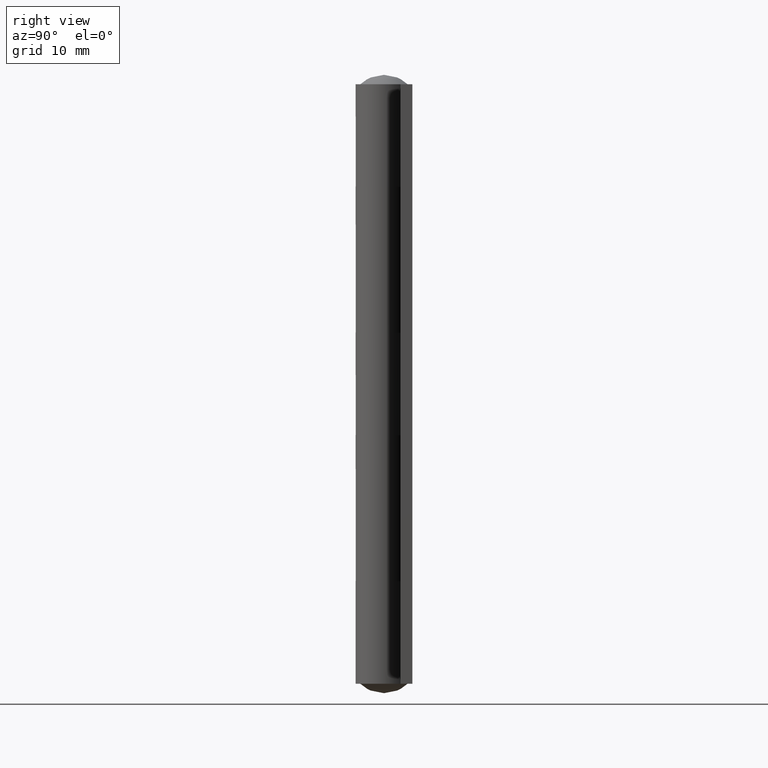
[diagram: clean part render]
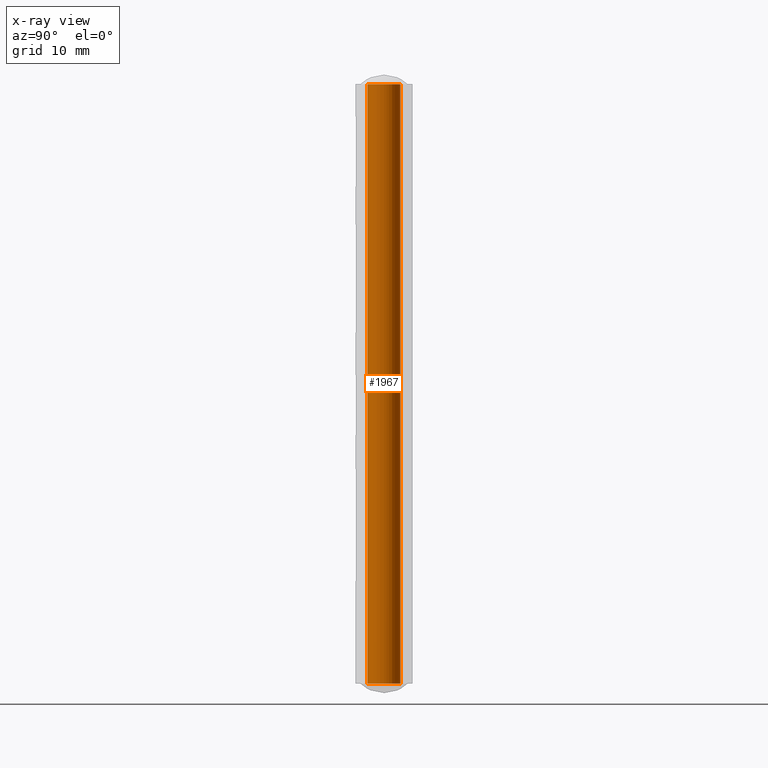
[diagram: x-ray — body ghosted, one internal face saturated and labeled with its STEP entity id]
A machine part, right view, then the same camera in x-ray: the body is ghosted and one INTERNAL B-rep face — a face not visible from any outside direction — is saturated and labeled: STEP entity #1967.
In plain terms, the highlighted face is a freeform B-spline surface patch.
Its self-contained STEP definition (entity closure, byte-faithful):
#1834=CARTESIAN_POINT('',(2.100005999999910,0.0,0.0));
#1835=VERTEX_POINT('',#1834);
#1836=CARTESIAN_POINT('',(0.128202299624910,-2.096089065475634,-3.654414E-015));
#1837=VERTEX_POINT('',#1836);
#1838=CARTESIAN_POINT('',(2.100005999999910,0.0,0.0));
#1839=CARTESIAN_POINT('',(2.100005999999910,-1.975488384445115,-5.423423E-015));
#1840=CARTESIAN_POINT('',(0.128202299624910,-2.096089065475631,-5.754515E-015));
#1848=(BOUNDED_CURVE()B_SPLINE_CURVE(2,(#1838,#1839,#1840),.UNSPECIFIED.,.F.,.U.)B_SPLINE_CURVE_WITH_KNOTS((3,3),(0.500000000000000,0.739332962216410),.UNSPECIFIED.)CURVE()GEOMETRIC_REPRESENTATION_ITEM()RATIONAL_B_SPLINE_CURVE((1.0,0.719603993313109,0.976072041618426))REPRESENTATION_ITEM(''));
#1849=EDGE_CURVE('',#1835,#1837,#1848,.T.);
#1868=CARTESIAN_POINT('',(-0.128202299624910,2.096089065475634,-3.659790E-015));
#1869=VERTEX_POINT('',#1868);
#1883=CARTESIAN_POINT('',(-0.128202299624910,2.096089065475632,-5.765269E-015));
#1884=CARTESIAN_POINT('',(-0.064160986399288,2.100005999999910,-5.765269E-015));
#1885=CARTESIAN_POINT('',(0.0,2.100005999999910,-5.765269E-015));
#1886=CARTESIAN_POINT('',(2.100005999999909,2.100005999999909,-5.765269E-015));
#1887=CARTESIAN_POINT('',(2.100005999999910,0.0,-5.765269E-015));
#1895=(BOUNDED_CURVE()B_SPLINE_CURVE(2,(#1883,#1884,#1885,#1886,#1887),.UNSPECIFIED.,.F.,.U.)B_SPLINE_CURVE_WITH_KNOTS((3,2,3),(0.239332962216410,0.250000000000000,0.500000000000000),.UNSPECIFIED.)CURVE()GEOMETRIC_REPRESENTATION_ITEM()RATIONAL_B_SPLINE_CURVE((0.976072041618426,0.987502787873439,1.0,0.707106781186548,1.0))REPRESENTATION_ITEM(''));
#1896=EDGE_CURVE('',#1869,#1835,#1895,.T.);
#1901=CARTESIAN_POINT('',(-0.128202299314432,2.096089065494626,77.900008200000116));
#1902=CARTESIAN_POINT('',(1.967886766180194,2.224291364809058,77.900008200000116));
#1903=CARTESIAN_POINT('',(2.096089065494626,0.128202299314432,77.900008200000116));
#1904=CARTESIAN_POINT('',(2.224291364809058,-1.967886766180194,77.900008200000116));
#1905=CARTESIAN_POINT('',(0.128202299314432,-2.096089065494626,77.900008200000116));
#1906=CARTESIAN_POINT('',(-0.128202299314432,2.096089065494626,-1.947500204999997));
#1907=CARTESIAN_POINT('',(1.967886766180194,2.224291364809058,-1.947500204999998));
#1908=CARTESIAN_POINT('',(2.096089065494626,0.128202299314432,-1.947500204999997));
#1909=CARTESIAN_POINT('',(2.224291364809058,-1.967886766180194,-1.947500204999998));
#1910=CARTESIAN_POINT('',(0.128202299314432,-2.096089065494626,-1.947500204999997));
#1918=(BOUNDED_SURFACE()B_SPLINE_SURFACE(2,1,((#1901,#1906),(#1902,#1907),(#1903,#1908),(#1904,#1909),(#1905,#1910)),.UNSPECIFIED.,.F.,.F.,.U.)B_SPLINE_SURFACE_WITH_KNOTS((3,2,3),(2,2),(0.0,3.479403865059354,6.958807730118708),(0.0,79.847508405000113),.UNSPECIFIED.)GEOMETRIC_REPRESENTATION_ITEM()RATIONAL_B_SPLINE_SURFACE(((1.0,1.0),(0.707106781186548,0.707106781186548),(1.0,1.0),(0.707106781186548,0.707106781186548),(1.0,1.0)))REPRESENTATION_ITEM('')SURFACE());
#1919=ORIENTED_EDGE('',*,*,#1896,.F.);
#1920=CARTESIAN_POINT('',(-0.128202299624910,2.096089065475639,76.000008000000093));
#1921=VERTEX_POINT('',#1920);
#1922=CARTESIAN_POINT('',(-0.128202299624910,2.096089065475639,76.000008000000093));
#1923=CARTESIAN_POINT('',(-0.128202299624910,2.096089065475634,-3.659790E-015));
#1924=QUASI_UNIFORM_CURVE('',1,(#1922,#1923),.UNSPECIFIED.,.F.,.U.);
#1925=EDGE_CURVE('',#1921,#1869,#1924,.T.);
#1926=ORIENTED_EDGE('',*,*,#1925,.F.);
#1927=CARTESIAN_POINT('',(2.100005999999921,0.0,76.000008000000093));
#1928=VERTEX_POINT('',#1927);
#1929=CARTESIAN_POINT('',(-0.128202299624910,2.096089065475643,76.000008000000108));
#1930=CARTESIAN_POINT('',(-0.064160986399288,2.100005999999920,76.000008000000093));
#1931=CARTESIAN_POINT('',(0.0,2.100005999999921,76.000008000000093));
#1932=CARTESIAN_POINT('',(2.100005999999921,2.100005999999921,76.000008000000093));
#1933=CARTESIAN_POINT('',(2.100005999999921,0.0,76.000008000000093));
#1941=(BOUNDED_CURVE()B_SPLINE_CURVE(2,(#1929,#1930,#1931,#1932,#1933),.UNSPECIFIED.,.F.,.U.)B_SPLINE_CURVE_WITH_KNOTS((3,2,3),(0.239332962216410,0.250000000000000,0.500000000000000),.UNSPECIFIED.)CURVE()GEOMETRIC_REPRESENTATION_ITEM()RATIONAL_B_SPLINE_CURVE((0.976072041618426,0.987502787873439,1.0,0.707106781186548,1.0))REPRESENTATION_ITEM(''));
#1942=EDGE_CURVE('',#1921,#1928,#1941,.T.);
#1943=ORIENTED_EDGE('',*,*,#1942,.T.);
#1944=CARTESIAN_POINT('',(0.128202299624910,-2.096089065475639,76.000008000000079));
#1945=VERTEX_POINT('',#1944);
#1946=CARTESIAN_POINT('',(2.100005999999921,0.0,76.000008000000093));
#1947=CARTESIAN_POINT('',(2.100005999999920,-1.975488384445125,76.000008000000093));
#1948=CARTESIAN_POINT('',(0.128202299624910,-2.096089065475643,76.000008000000108));
#1956=(BOUNDED_CURVE()B_SPLINE_CURVE(2,(#1946,#1947,#1948),.UNSPECIFIED.,.F.,.U.)B_SPLINE_CURVE_WITH_KNOTS((3,3),(0.500000000000000,0.739332962216410),.UNSPECIFIED.)CURVE()GEOMETRIC_REPRESENTATION_ITEM()RATIONAL_B_SPLINE_CURVE((1.0,0.719603993313109,0.976072041618426))REPRESENTATION_ITEM(''));
#1957=EDGE_CURVE('',#1928,#1945,#1956,.T.);
#1958=ORIENTED_EDGE('',*,*,#1957,.T.);
#1959=CARTESIAN_POINT('',(0.128202299624910,-2.096089065475639,76.000008000000079));
#1960=CARTESIAN_POINT('',(0.128202299624910,-2.096089065475634,-3.654414E-015));
#1961=QUASI_UNIFORM_CURVE('',1,(#1959,#1960),.UNSPECIFIED.,.F.,.U.);
#1962=EDGE_CURVE('',#1945,#1837,#1961,.T.);
#1963=ORIENTED_EDGE('',*,*,#1962,.T.);
#1964=ORIENTED_EDGE('',*,*,#1849,.F.);
#1965=EDGE_LOOP('',(#1919,#1926,#1943,#1958,#1963,#1964));
#1966=FACE_OUTER_BOUND('',#1965,.T.);
#1967=ADVANCED_FACE('',(#1966),#1918,.T.);